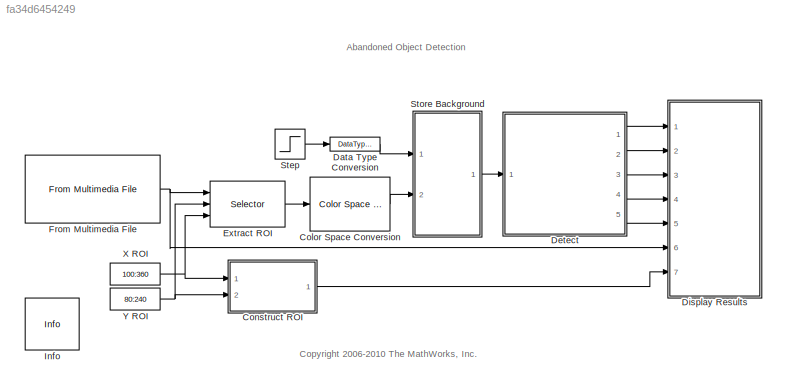
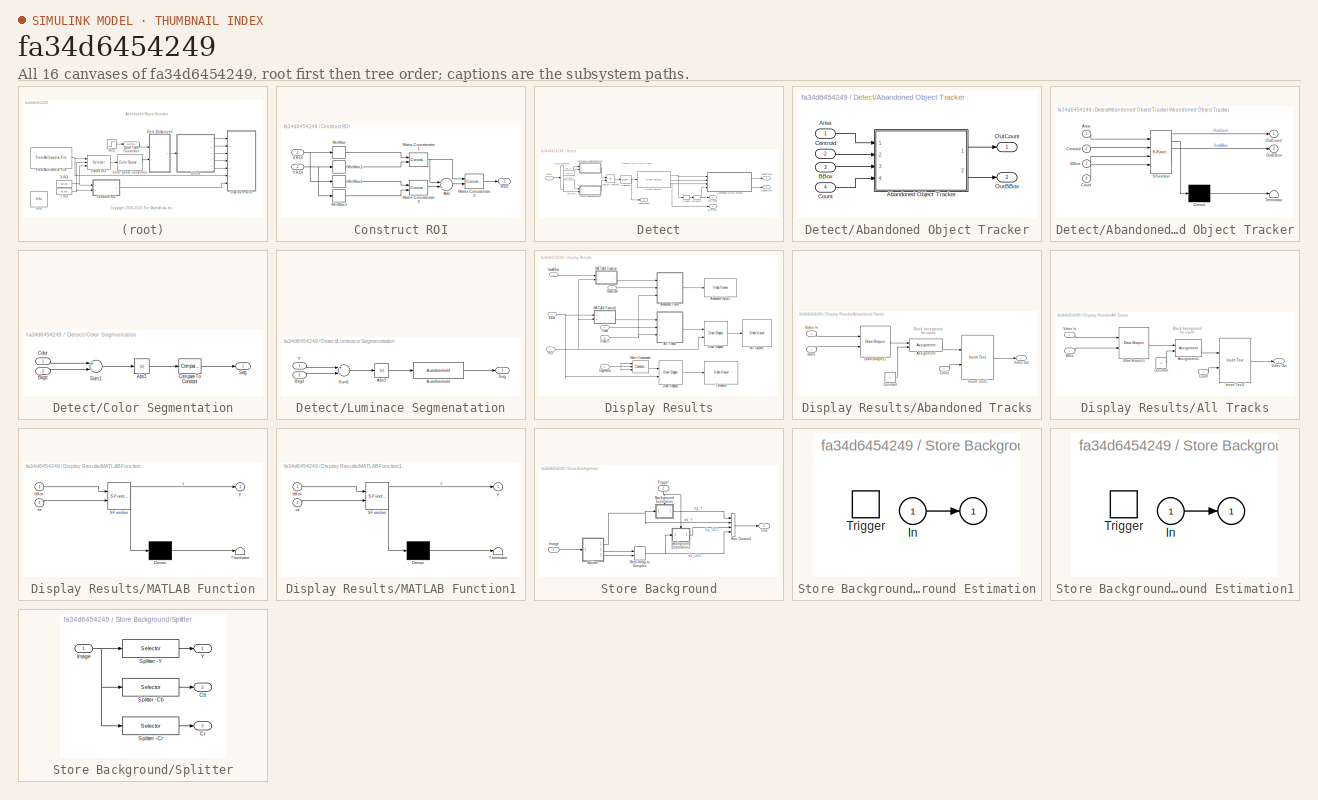
[diagram: thumbnail index - all 16 canvases of the model, root first then tree order]
MODEL slx_fa34d6454249
KIND model
CONFIG AbsTol = auto
CONFIG FixedStep = auto
CONFIG MaxStep = auto
CONFIG MinStep = auto
CONFIG RelTol = 1e-3
CONFIG SampleTimeConstraint = Unconstrained
CONFIG Solver = FixedStepDiscrete
CONFIG SolverMode = Auto
CONFIG SolverName = FixedStepDiscrete
CONFIG StartTime = 0.0
CONFIG StopTime = inf
WORKSPACE source: MATLAB code (in-file)
WORKSPACE maxNumObj = 200
BLOCK [Reference] Color Space Conversion  REF=visionconversions/Color Space
 Conversion
  Ports = [1, 1]
  SourceBlock = visionconversions/Color Space\n Conversion
  SourceType = Color Space Conversion
BLOCK [SubSystem] Construct ROI
  Ports = [2, 1]
  RequestExecContextInheritance = off
  Variant = off
BLOCK [Sum] Construct ROI/Add
  InputSameDT = off
  Inputs = -+
  OutDataTypeStr = Inherit: Inherit via internal rule
  Ports = [2, 1]
  SaturateOnIntegerOverflow = off
BLOCK [Concatenate] Construct ROI/Matrix Concatenate1
  ConcatenateDimension = 2
  Mode = Multidimensional array
  Ports = [2, 1]
BLOCK [Concatenate] Construct ROI/Matrix Concatenate2
  ConcatenateDimension = 2
  Mode = Multidimensional array
  Ports = [2, 1]
BLOCK [Concatenate] Construct ROI/Matrix Concatenate3
  ConcatenateDimension = 2
  Mode = Multidimensional array
  Ports = [2, 1]
BLOCK [MinMax] Construct ROI/MinMax
  InputSameDT = off
  Ports = [1, 1]
  SaturateOnIntegerOverflow = off
BLOCK [MinMax] Construct ROI/MinMax1
  InputSameDT = off
  Ports = [1, 1]
  SaturateOnIntegerOverflow = off
BLOCK [MinMax] Construct ROI/MinMax2
  Function = max
  InputSameDT = off
  Ports = [1, 1]
  SaturateOnIntegerOverflow = off
BLOCK [MinMax] Construct ROI/MinMax3
  Function = max
  InputSameDT = off
  Ports = [1, 1]
  SaturateOnIntegerOverflow = off
BLOCK [Outport] Construct ROI/ROI
  IconDisplay = Port number
BLOCK [Inport] Construct ROI/X ROI 
  IconDisplay = Port number
BLOCK [Inport] Construct ROI/Y ROI
  IconDisplay = Port number
  Port = 2
BLOCK [DataTypeConversion] Data Type Conversion
  OutDataTypeStr = boolean
  RndMeth = Floor
  SaturateOnIntegerOverflow = off
BLOCK [SubSystem] Detect
  Ports = [1, 5]
  RTWMemSecDataConstants = Default
  RTWMemSecDataInternal = Default
  RTWMemSecDataParameters = Default
  RTWMemSecFuncExecute = Default
  RTWMemSecFuncInitTerm = Default
  RequestExecContextInheritance = off
  TreatAsAtomicUnit = on
  Variant = off
BLOCK [SubSystem] Detect/Abandoned Object Tracker
  Ports = [4, 2]
  RequestExecContextInheritance = off
  Variant = off
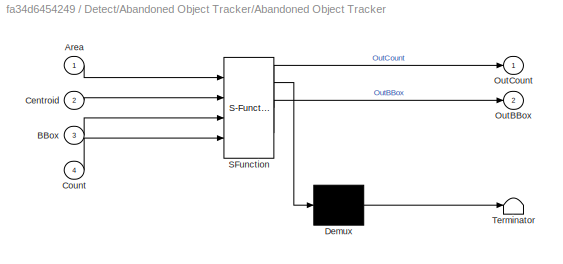
BLOCK [SubSystem] Detect/Abandoned Object Tracker/Abandoned Object Tracker
  ErrorFcn = Stateflow.Translate.translate
  PermitHierarchicalResolution = ExplicitOnly
  Ports = [4, 2]
  RequestExecContextInheritance = off
  SFBlockType = MATLAB Function
  TreatAsAtomicUnit = on
  Variant = off
BLOCK [Demux] Detect/Abandoned Object Tracker/Abandoned Object Tracker/ Demux 
  Outputs = 1
  Ports = [1, 1]
BLOCK [S-Function] Detect/Abandoned Object Tracker/Abandoned Object Tracker/ SFunction 
  EnableBusSupport = off
  FunctionName = sf_sfun
  Parameters = alarmCount,areaChangeFraction,centroidChangeFraction,maxConsecutiveMiss,maxNumObj,minPersistenceRatio
  PortCounts = [4 3]
  Ports = [4, 3]
  SFunctionDeploymentMode = off
  Tag = Stateflow S-Function vipabandonedobj 4
BLOCK [Terminator] Detect/Abandoned Object Tracker/Abandoned Object Tracker/ Terminator 
BLOCK [Inport] Detect/Abandoned Object Tracker/Abandoned Object Tracker/Area
  IconDisplay = Port number
BLOCK [Inport] Detect/Abandoned Object Tracker/Abandoned Object Tracker/BBox
  IconDisplay = Port number
  Port = 3
BLOCK [Inport] Detect/Abandoned Object Tracker/Abandoned Object Tracker/Centroid
  IconDisplay = Port number
  Port = 2
BLOCK [Inport] Detect/Abandoned Object Tracker/Abandoned Object Tracker/Count
  IconDisplay = Port number
  Port = 4
BLOCK [Outport] Detect/Abandoned Object Tracker/Abandoned Object Tracker/OutBBox
  IconDisplay = Port number
  Port = 2
BLOCK [Outport] Detect/Abandoned Object Tracker/Abandoned Object Tracker/OutCount
  IconDisplay = Port number
BLOCK [Inport] Detect/Abandoned Object Tracker/Area
  IconDisplay = Port number
BLOCK [Inport] Detect/Abandoned Object Tracker/BBox
  IconDisplay = Port number
  Port = 3
BLOCK [Inport] Detect/Abandoned Object Tracker/Centroid
  IconDisplay = Port number
  Port = 2
BLOCK [Inport] Detect/Abandoned Object Tracker/Count
  IconDisplay = Port number
  Port = 4
BLOCK [Outport] Detect/Abandoned Object Tracker/OutBBox
  IconDisplay = Port number
  Port = 2
BLOCK [Outport] Detect/Abandoned Object Tracker/OutCount
  IconDisplay = Port number
BLOCK [Reference] Detect/Blob Analysis  REF=visionstatistics/Blob Analysis
  Ports = [1, 3]
  SourceBlock = visionstatistics/Blob Analysis
  SourceType = Blob Analysis
  Tag = vipblks_row_conv
BLOCK [BusSelector] Detect/Bus Selector
  OutputSignals = vid_Y,bg_Y,vid_CbCr,bg_CbCr
  Ports = [1, 4]
BLOCK [SubSystem] Detect/Color Segmentation
  Ports = [2, 1]
  RTWMemSecDataConstants = Default
  RTWMemSecDataInternal = Default
  RTWMemSecDataParameters = Default
  RTWMemSecFuncExecute = Default
  RTWMemSecFuncInitTerm = Default
  RequestExecContextInheritance = off
  Variant = off
BLOCK [Abs] Detect/Color Segmentation/Abs3
BLOCK [Inport] Detect/Color Segmentation/Bkgd
  IconDisplay = Port number
  Port = 2
BLOCK [Inport] Detect/Color Segmentation/Color
  IconDisplay = Port number
BLOCK [Reference] Detect/Color Segmentation/Compare To Constant  REF=simulink/Logic and Bit
Operations/Compare
To Constant
  Ports = [1, 1]
  SourceBlock = simulink/Logic and Bit\nOperations/Compare\nTo Constant
  SourceType = Compare To Constant
BLOCK [Outport] Detect/Color Segmentation/Seg
  IconDisplay = Port number
BLOCK [Sum] Detect/Color Segmentation/Sum1
  Inputs = +-
  Ports = [2, 1]
BLOCK [Inport] Detect/Data
  IconDisplay = Port number
BLOCK [Logic] Detect/Logical Operator
  AllPortsSameDT = off
  Operator = OR
  OutDataTypeStr = boolean
  Ports = [2, 1]
BLOCK [SubSystem] Detect/Luminace Segmenatation
  Ports = [2, 1]
  RTWMemSecDataConstants = Default
  RTWMemSecDataInternal = Default
  RTWMemSecDataParameters = Default
  RTWMemSecFuncExecute = Default
  RTWMemSecFuncInitTerm = Default
  RequestExecContextInheritance = off
  Variant = off
BLOCK [Abs] Detect/Luminace Segmenatation/Abs3
BLOCK [Reference] Detect/Luminace Segmenatation/Autothreshold  REF=visionconversions/Autothreshold
  Ports = [1, 1]
  SourceBlock = visionconversions/Autothreshold
  SourceType = Autothreshold
BLOCK [Inport] Detect/Luminace Segmenatation/Bkgd
  IconDisplay = Port number
  Port = 2
BLOCK [Outport] Detect/Luminace Segmenatation/Seg
  IconDisplay = Port number
BLOCK [Sum] Detect/Luminace Segmenatation/Sum1
  Inputs = +-
  Ports = [2, 1]
BLOCK [Inport] Detect/Luminace Segmenatation/Y'
  IconDisplay = Port number
BLOCK [Reference] Detect/Opening  REF=visionmorphops/Opening
  Ports = [1, 1]
  SourceBlock = visionmorphops/Opening
  SourceType = Opening
BLOCK [Probe] Detect/Probe1
  Ports = [1, 1]
  ProbeComplexSignal = off
  ProbeDimensionsDataType = int32
  ProbeSampleTime = off
  ProbeSignalDimensions = on
  ProbeWidth = off
BLOCK [Outport] Detect/Segmented
  IconDisplay = Port number
  Port = 5
BLOCK [Selector] Detect/Selector1
  IndexOptions = Index vector (dialog)
  Indices = 1
  InputPortWidth = 2
  OutputSizes = 1
  Ports = [1, 1]
BLOCK [Outport] Detect/allBBox
  IconDisplay = Port number
  Port = 3
BLOCK [Outport] Detect/allCount
  IconDisplay = Port number
  Port = 4
BLOCK [Outport] Detect/foundBBox
  IconDisplay = Port number
BLOCK [Outport] Detect/foundCount
  IconDisplay = Port number
  Port = 2
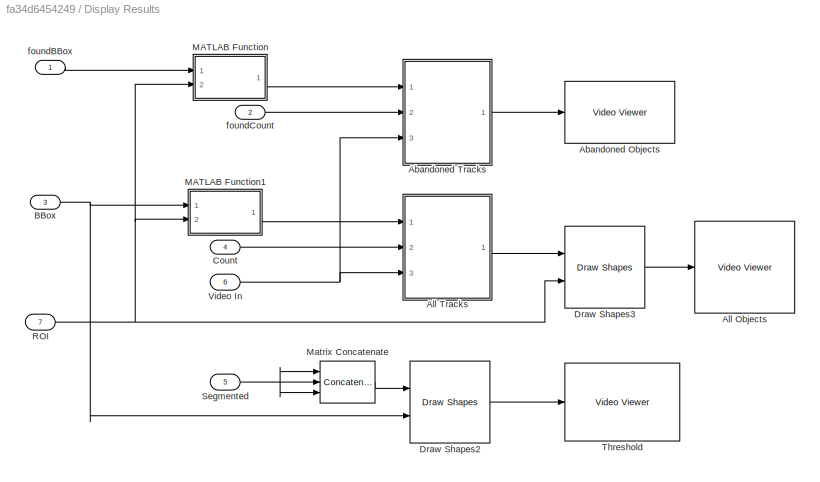
BLOCK [SubSystem] Display Results
  Ports = [7]
  RTWMemSecDataConstants = Default
  RTWMemSecDataInternal = Default
  RTWMemSecDataParameters = Default
  RTWMemSecFuncExecute = Default
  RTWMemSecFuncInitTerm = Default
  RequestExecContextInheritance = off
  Variant = off
BLOCK [Reference] Display Results/Abandoned Objects  REF=visionsinks/Video Viewer
  Ports = [1]
  SourceBlock = visionsinks/Video Viewer
  SourceType = Video Viewer
  UserDataPersistent = on
BLOCK [SubSystem] Display Results/Abandoned Tracks
  Ports = [3, 1]
  RTWMemSecDataConstants = Default
  RTWMemSecDataInternal = Default
  RTWMemSecDataParameters = Default
  RTWMemSecFuncExecute = Default
  RTWMemSecFuncInitTerm = Default
  RequestExecContextInheritance = off
  Variant = off
BLOCK [Assignment] Display Results/Abandoned Tracks/Assignment
  IndexOptions = Index vector (dialog),Index vector (dialog),Assign all
  Indices = [1:15],[1:30],[]
  NumberOfDimensions = 3
  OutputSizes = 1, 1
  Ports = [2, 1]
BLOCK [Inport] Display Results/Abandoned Tracks/BBox
  IconDisplay = Port number
BLOCK [Constant] Display Results/Abandoned Tracks/Constant
  OutDataTypeStr = Inherit: Inherit via back propagation
  Value = 0
  VectorParams1D = off
BLOCK [Inport] Display Results/Abandoned Tracks/Count
  IconDisplay = Port number
  Port = 2
BLOCK [Reference] Display Results/Abandoned Tracks/Draw Shapes1  REF=visiontextngfix/Draw Shapes
  Ports = [2, 1]
  SourceBlock = visiontextngfix/Draw Shapes
  SourceType = Draw Shapes
BLOCK [Reference] Display Results/Abandoned Tracks/Insert Text1  REF=visiontextngfix/Insert Text
  Ports = [2, 1]
  SourceBlock = visiontextngfix/Insert Text
  SourceType = Insert Text
BLOCK [Inport] Display Results/Abandoned Tracks/Video In
  IconDisplay = Port number
  Port = 3
BLOCK [Outport] Display Results/Abandoned Tracks/Video Out
  IconDisplay = Port number
BLOCK [Reference] Display Results/All Objects  REF=visionsinks/Video Viewer
  Ports = [1]
  SourceBlock = visionsinks/Video Viewer
  SourceType = Video Viewer
  UserDataPersistent = on
BLOCK [SubSystem] Display Results/All Tracks
  Ports = [3, 1]
  RTWMemSecDataConstants = Default
  RTWMemSecDataInternal = Default
  RTWMemSecDataParameters = Default
  RTWMemSecFuncExecute = Default
  RTWMemSecFuncInitTerm = Default
  RequestExecContextInheritance = off
  Variant = off
BLOCK [Assignment] Display Results/All Tracks/Assignment1
  IndexOptions = Index vector (dialog),Index vector (dialog),Assign all
  Indices = [1:15],[1:30],[]
  NumberOfDimensions = 3
  OutputSizes = 1, 1
  Ports = [2, 1]
BLOCK [Inport] Display Results/All Tracks/BBox
  IconDisplay = Port number
BLOCK [Constant] Display Results/All Tracks/Constant
  OutDataTypeStr = Inherit: Inherit via back propagation
  Value = 0
  VectorParams1D = off
BLOCK [Inport] Display Results/All Tracks/Count
  IconDisplay = Port number
  Port = 2
BLOCK [Reference] Display Results/All Tracks/Draw Shapes1  REF=visiontextngfix/Draw Shapes
  Ports = [2, 1]
  SourceBlock = visiontextngfix/Draw Shapes
  SourceType = Draw Shapes
BLOCK [Reference] Display Results/All Tracks/Insert Text1  REF=visiontextngfix/Insert Text
  Ports = [2, 1]
  SourceBlock = visiontextngfix/Insert Text
  SourceType = Insert Text
BLOCK [Inport] Display Results/All Tracks/Video In
  IconDisplay = Port number
  Port = 3
BLOCK [Outport] Display Results/All Tracks/Video Out
  IconDisplay = Port number
BLOCK [Inport] Display Results/BBox
  IconDisplay = Port number
  Port = 3
BLOCK [Inport] Display Results/Count
  IconDisplay = Port number
  Port = 4
BLOCK [Reference] Display Results/Draw Shapes2  REF=visiontextngfix/Draw Shapes
  Ports = [2, 1]
  SourceBlock = visiontextngfix/Draw Shapes
  SourceType = Draw Shapes
BLOCK [Reference] Display Results/Draw Shapes3  REF=visiontextngfix/Draw Shapes
  Ports = [2, 1]
  SourceBlock = visiontextngfix/Draw Shapes
  SourceType = Draw Shapes
BLOCK [SubSystem] Display Results/MATLAB Function
  ErrorFcn = Stateflow.Translate.translate
  PermitHierarchicalResolution = ExplicitOnly
  Ports = [2, 1]
  RequestExecContextInheritance = off
  SFBlockType = MATLAB Function
  TreatAsAtomicUnit = on
  Variant = off
BLOCK [Demux] Display Results/MATLAB Function/ Demux 
  Outputs = 1
  Ports = [1, 1]
BLOCK [S-Function] Display Results/MATLAB Function/ SFunction 
  EnableBusSupport = off
  FunctionName = sf_sfun
  PortCounts = [2 2]
  Ports = [2, 2]
  SFunctionDeploymentMode = off
  Tag = Stateflow S-Function vipabandonedobj 5
BLOCK [Terminator] Display Results/MATLAB Function/ Terminator 
BLOCK [Inport] Display Results/MATLAB Function/bBox
  IconDisplay = Port number
BLOCK [Inport] Display Results/MATLAB Function/roi
  IconDisplay = Port number
  Port = 2
BLOCK [Outport] Display Results/MATLAB Function/y
  IconDisplay = Port number
BLOCK [SubSystem] Display Results/MATLAB Function1
  ErrorFcn = Stateflow.Translate.translate
  PermitHierarchicalResolution = ExplicitOnly
  Ports = [2, 1]
  RequestExecContextInheritance = off
  SFBlockType = MATLAB Function
  TreatAsAtomicUnit = on
  Variant = off
BLOCK [Demux] Display Results/MATLAB Function1/ Demux 
  Outputs = 1
  Ports = [1, 1]
BLOCK [S-Function] Display Results/MATLAB Function1/ SFunction 
  EnableBusSupport = off
  FunctionName = sf_sfun
  PortCounts = [2 2]
  Ports = [2, 2]
  SFunctionDeploymentMode = off
  Tag = Stateflow S-Function vipabandonedobj 6
BLOCK [Terminator] Display Results/MATLAB Function1/ Terminator 
BLOCK [Inport] Display Results/MATLAB Function1/bBox
  IconDisplay = Port number
BLOCK [Inport] Display Results/MATLAB Function1/roi
  IconDisplay = Port number
  Port = 2
BLOCK [Outport] Display Results/MATLAB Function1/y
  IconDisplay = Port number
BLOCK [Concatenate] Display Results/Matrix Concatenate
  ConcatenateDimension = 3
  Mode = Multidimensional array
  NumInputs = 3
  Ports = [3, 1]
BLOCK [Inport] Display Results/ROI
  IconDisplay = Port number
  Port = 7
BLOCK [Inport] Display Results/Segmented
  IconDisplay = Port number
  Port = 5
BLOCK [Reference] Display Results/Threshold  REF=visionsinks/Video Viewer
  Ports = [1]
  SourceBlock = visionsinks/Video Viewer
  SourceType = Video Viewer
  UserDataPersistent = on
BLOCK [Inport] Display Results/Video In
  IconDisplay = Port number
  Port = 6
BLOCK [Inport] Display Results/foundBBox
  IconDisplay = Port number
BLOCK [Inport] Display Results/foundCount
  IconDisplay = Port number
  Port = 2
BLOCK [Selector] Extract ROI
  IndexOptions = Index vector (port),Index vector (port),Select all
  Indices = [roi(1):roi(3)],[roi(2):roi(4)],[]
  NumberOfDimensions = 3
  OutputSizes = 1
  Ports = [3, 1]
BLOCK [Reference] From Multimedia File  REF=dspvision/From Multimedia File
  Ports = [0, 1]
  SourceBlock = dspvision/From Multimedia File
  SourceType = From Multimedia File
BLOCK [Reference] Info  REF=vipmisc/Info
  Ports = []
  SourceBlock = vipmisc/Info
  SourceType = Info
BLOCK [Step] Step
  Time = eps
BLOCK [SubSystem] Store Background
  Ports = [2, 1]
  RequestExecContextInheritance = off
  Variant = off
BLOCK [SubSystem] Store Background/Background Estimation
  Ports = [1, 1, 0, 1]
  RequestExecContextInheritance = off
  TreatAsAtomicUnit = on
  Variant = off
BLOCK [Outport] Store Background/Background Estimation/ 
  IconDisplay = Port number
  InitialOutput = initCond
BLOCK [Inport] Store Background/Background Estimation/In
  IconDisplay = Port number
BLOCK [TriggerPort] Store Background/Background Estimation/Trigger
  Ports = []
  ZeroCross = off
BLOCK [SubSystem] Store Background/Background Estimation1
  Ports = [1, 1, 0, 1]
  RequestExecContextInheritance = off
  TreatAsAtomicUnit = on
  Variant = off
BLOCK [Outport] Store Background/Background Estimation1/ 
  IconDisplay = Port number
  InitialOutput = initCond
BLOCK [Inport] Store Background/Background Estimation1/In
  IconDisplay = Port number
BLOCK [TriggerPort] Store Background/Background Estimation1/Trigger
  Ports = []
  ZeroCross = off
BLOCK [BusCreator] Store Background/Bus Creator1
  DisplayOption = bar
  InheritFromInputs = on
  Inputs = 4
  Ports = [4, 1]
BLOCK [Inport] Store Background/Image
  IconDisplay = Port number
  Port = 2
BLOCK [Outport] Store Background/Out
  IconDisplay = Port number
BLOCK [RealImagToComplex] Store Background/Real-Imag to Complex
  Ports = [2, 1]
BLOCK [SubSystem] Store Background/Splitter
  Ports = [1, 3]
  RequestExecContextInheritance = off
  Variant = off
BLOCK [Outport] Store Background/Splitter/Cb
  IconDisplay = Port number
  Port = 2
BLOCK [Outport] Store Background/Splitter/Cr
  IconDisplay = Port number
  Port = 3
BLOCK [Inport] Store Background/Splitter/Image
  IconDisplay = Port number
BLOCK [Selector] Store Background/Splitter/Splitter -Cb
  IndexOptions = Select all,Select all,Index vector (dialog)
  Indices = [],[],[2]
  NumberOfDimensions = 3
  OutputSizes = 1
  Ports = [1, 1]
BLOCK [Selector] Store Background/Splitter/Splitter -Cr
  IndexOptions = Select all,Select all,Index vector (dialog)
  Indices = [],[],[3]
  NumberOfDimensions = 3
  OutputSizes = 1
  Ports = [1, 1]
BLOCK [Selector] Store Background/Splitter/Splitter -Y
  IndexOptions = Select all,Select all,Index vector (dialog)
  Indices = [],[],[1]
  NumberOfDimensions = 3
  OutputSizes = 1
  Ports = [1, 1]
BLOCK [Outport] Store Background/Splitter/Y
  IconDisplay = Port number
BLOCK [Inport] Store Background/Trigger
  IconDisplay = Port number
BLOCK [Constant] X ROI
  Value = 100:360
BLOCK [Constant] Y ROI
  Value = 80:240
ANNOTATION (root): Abandoned Object Detection
ANNOTATION (root): <copyright redacted>
ANNOTATION Detect: Changed from Close to Open
ANNOTATION Display Results/Abandoned Tracks: Black background for count
ANNOTATION Display Results/All Tracks: Black background for count
LINE Color Space Conversion:1 -> Store Background:2
LINE Construct ROI/Add:1 -> Construct ROI/Matrix Concatenate2:2
NET Construct ROI/Matrix Concatenate1:1 -> Construct ROI/Add:1, Construct ROI/Matrix Concatenate2:1
LINE Construct ROI/Matrix Concatenate2:1 -> Construct ROI/ROI:1
LINE Construct ROI/Matrix Concatenate3:1 -> Construct ROI/Add:2
LINE Construct ROI/MinMax1:1 -> Construct ROI/Matrix Concatenate1:2
LINE Construct ROI/MinMax2:1 -> Construct ROI/Matrix Concatenate3:1
LINE Construct ROI/MinMax3:1 -> Construct ROI/Matrix Concatenate3:2
LINE Construct ROI/MinMax:1 -> Construct ROI/Matrix Concatenate1:1
NET Construct ROI/X ROI :1 -> Construct ROI/MinMax2:1, Construct ROI/MinMax:1
NET Construct ROI/Y ROI:1 -> Construct ROI/MinMax1:1, Construct ROI/MinMax3:1
LINE Construct ROI:1 -> Display Results:7
LINE Data Type Conversion:1 -> Store Background:1
LINE Detect/Abandoned Object Tracker/Abandoned Object Tracker:1 -> Detect/Abandoned Object Tracker/OutCount:1
LINE Detect/Abandoned Object Tracker/Abandoned Object Tracker:2 -> Detect/Abandoned Object Tracker/OutBBox:1
LINE Detect/Abandoned Object Tracker/Area:1 -> Detect/Abandoned Object Tracker/Abandoned Object Tracker:1
LINE Detect/Abandoned Object Tracker/BBox:1 -> Detect/Abandoned Object Tracker/Abandoned Object Tracker:3
LINE Detect/Abandoned Object Tracker/Centroid:1 -> Detect/Abandoned Object Tracker/Abandoned Object Tracker:2
LINE Detect/Abandoned Object Tracker/Count:1 -> Detect/Abandoned Object Tracker/Abandoned Object Tracker:4
LINE Detect/Abandoned Object Tracker:1 -> Detect/foundCount:1
LINE Detect/Abandoned Object Tracker:2 -> Detect/foundBBox:1
NET Detect/Blob Analysis:1 -> Detect/Abandoned Object Tracker:1, Detect/Probe1:1
LINE Detect/Blob Analysis:2 -> Detect/Abandoned Object Tracker:2
NET Detect/Blob Analysis:3 -> Detect/Abandoned Object Tracker:3, Detect/allBBox:1
LINE Detect/Bus Selector:1 -> Detect/Luminace Segmenatation:1
LINE Detect/Bus Selector:2 -> Detect/Luminace Segmenatation:2
LINE Detect/Bus Selector:3 -> Detect/Color Segmentation:1
LINE Detect/Bus Selector:4 -> Detect/Color Segmentation:2
LINE Detect/Color Segmentation/Abs3:1 -> Detect/Color Segmentation/Compare To Constant:1
LINE Detect/Color Segmentation/Bkgd:1 -> Detect/Color Segmentation/Sum1:2
LINE Detect/Color Segmentation/Color:1 -> Detect/Color Segmentation/Sum1:1
LINE Detect/Color Segmentation/Compare To Constant:1 -> Detect/Color Segmentation/Seg:1
LINE Detect/Color Segmentation/Sum1:1 -> Detect/Color Segmentation/Abs3:1
LINE Detect/Color Segmentation:1 -> Detect/Logical Operator:2
LINE Detect/Data:1 -> Detect/Bus Selector:1
LINE Detect/Logical Operator:1 -> Detect/Opening:1
LINE Detect/Luminace Segmenatation/Abs3:1 -> Detect/Luminace Segmenatation/Autothreshold:1
LINE Detect/Luminace Segmenatation/Autothreshold:1 -> Detect/Luminace Segmenatation/Seg:1
LINE Detect/Luminace Segmenatation/Bkgd:1 -> Detect/Luminace Segmenatation/Sum1:2
LINE Detect/Luminace Segmenatation/Sum1:1 -> Detect/Luminace Segmenatation/Abs3:1
LINE Detect/Luminace Segmenatation/Y':1 -> Detect/Luminace Segmenatation/Sum1:1
LINE Detect/Luminace Segmenatation:1 -> Detect/Logical Operator:1
NET Detect/Opening:1 -> Detect/Blob Analysis:1, Detect/Segmented:1
LINE Detect/Probe1:1 -> Detect/Selector1:1
NET Detect/Selector1:1 -> Detect/Abandoned Object Tracker:4, Detect/allCount:1
LINE Detect:1 -> Display Results:1
LINE Detect:2 -> Display Results:2
LINE Detect:3 -> Display Results:3
LINE Detect:4 -> Display Results:4
LINE Detect:5 -> Display Results:5
LINE Display Results/Abandoned Tracks/Assignment:1 -> Display Results/Abandoned Tracks/Insert Text1:1
LINE Display Results/Abandoned Tracks/BBox:1 -> Display Results/Abandoned Tracks/Draw Shapes1:2
LINE Display Results/Abandoned Tracks/Constant:1 -> Display Results/Abandoned Tracks/Assignment:2
LINE Display Results/Abandoned Tracks/Count:1 -> Display Results/Abandoned Tracks/Insert Text1:2
LINE Display Results/Abandoned Tracks/Draw Shapes1:1 -> Display Results/Abandoned Tracks/Assignment:1
LINE Display Results/Abandoned Tracks/Insert Text1:1 -> Display Results/Abandoned Tracks/Video Out:1
LINE Display Results/Abandoned Tracks/Video In:1 -> Display Results/Abandoned Tracks/Draw Shapes1:1
LINE Display Results/Abandoned Tracks:1 -> Display Results/Abandoned Objects:1
LINE Display Results/All Tracks/Assignment1:1 -> Display Results/All Tracks/Insert Text1:1
LINE Display Results/All Tracks/BBox:1 -> Display Results/All Tracks/Draw Shapes1:2
LINE Display Results/All Tracks/Constant:1 -> Display Results/All Tracks/Assignment1:2
LINE Display Results/All Tracks/Count:1 -> Display Results/All Tracks/Insert Text1:2
LINE Display Results/All Tracks/Draw Shapes1:1 -> Display Results/All Tracks/Assignment1:1
LINE Display Results/All Tracks/Insert Text1:1 -> Display Results/All Tracks/Video Out:1
LINE Display Results/All Tracks/Video In:1 -> Display Results/All Tracks/Draw Shapes1:1
LINE Display Results/All Tracks:1 -> Display Results/Draw Shapes3:1
NET Display Results/BBox:1 -> Display Results/Draw Shapes2:2, Display Results/MATLAB Function1:1
LINE Display Results/Count:1 -> Display Results/All Tracks:2
LINE Display Results/Draw Shapes2:1 -> Display Results/Threshold:1
LINE Display Results/Draw Shapes3:1 -> Display Results/All Objects:1
LINE Display Results/MATLAB Function1:1 -> Display Results/All Tracks:1
LINE Display Results/MATLAB Function:1 -> Display Results/Abandoned Tracks:1
LINE Display Results/Matrix Concatenate:1 -> Display Results/Draw Shapes2:1
NET Display Results/ROI:1 -> Display Results/Draw Shapes3:2, Display Results/MATLAB Function1:2, Display Results/MATLAB Function:2
NET Display Results/Segmented:1 -> Display Results/Matrix Concatenate:1, Display Results/Matrix Concatenate:2, Display Results/Matrix Concatenate:3
NET Display Results/Video In:1 -> Display Results/Abandoned Tracks:3, Display Results/All Tracks:3
LINE Display Results/foundBBox:1 -> Display Results/MATLAB Function:1
LINE Display Results/foundCount:1 -> Display Results/Abandoned Tracks:2
LINE Extract ROI:1 -> Color Space Conversion:1
NET From Multimedia File:1 -> Display Results:6, Extract ROI:1
LINE Step:1 -> Data Type Conversion:1
LINE Store Background/Background Estimation/In:1 -> Store Background/Background Estimation/ :1
LINE Store Background/Background Estimation1/In:1 -> Store Background/Background Estimation1/ :1
LINE Store Background/Background Estimation1:1 -> Store Background/Bus Creator1:3
LINE Store Background/Background Estimation:1 -> Store Background/Bus Creator1:1
LINE Store Background/Bus Creator1:1 -> Store Background/Out:1
LINE Store Background/Image:1 -> Store Background/Splitter:1
NET Store Background/Real-Imag to Complex:1 -> Store Background/Background Estimation1:1, Store Background/Bus Creator1:4
NET Store Background/Splitter/Image:1 -> Store Background/Splitter/Splitter -Cb:1, Store Background/Splitter/Splitter -Cr:1, Store Background/Splitter/Splitter -Y:1
LINE Store Background/Splitter/Splitter -Cb:1 -> Store Background/Splitter/Cb:1
LINE Store Background/Splitter/Splitter -Cr:1 -> Store Background/Splitter/Cr:1
LINE Store Background/Splitter/Splitter -Y:1 -> Store Background/Splitter/Y:1
NET Store Background/Splitter:1 -> Store Background/Background Estimation:1, Store Background/Bus Creator1:2
LINE Store Background/Splitter:2 -> Store Background/Real-Imag to Complex:1
LINE Store Background/Splitter:3 -> Store Background/Real-Imag to Complex:2
NET Store Background/Trigger:1 -> Store Background/Background Estimation1:trigger, Store Background/Background Estimation:trigger
LINE Store Background:1 -> Detect:1
NET X ROI:1 -> Construct ROI:1, Extract ROI:3
NET Y ROI:1 -> Construct ROI:2, Extract ROI:2
note: NET lines group one-source signal fan-out (src -> all destinations, sorted); 1:1 wires keep LINE
CHART Detect/Abandoned Object
Tracker/Abandoned Object
Tracker states=1 transitions=1
  STATE_LABEL 'eML_blk_kernel()'
  STATE_LABEL 'SCRIPT:\n%% This block implements an abandoned object tracker.\n%%\n%% Note:  Inputs that start with capital letter are represented as ports\n%%        while inputs that start with lower case are mask parameters\n%%\n\nfunction [OutCount, OutBBox] = ObjTracker(Area, Centroid, BBox, Count, ...\n    areaChangeFraction, centroidChangeFraction, maxConsecutiveMiss, ...\n    minPersistenceRatio, alarmCount, maxN...<+3608ch>'
CHART Display Results/MATLAB Function states=1 transitions=1
  STATE_LABEL 'eML_blk_kernel()'
  STATE_LABEL 'SCRIPT:\nfunction y = vAdd(bBox, roi)\n%#codegen\n% Add roi offset to the bounding boxes for display in the input image\ny = bBox;\nif (size(bBox,1)~=0)\n    y(:,1) = bBox(:,1) + roi(1)-1;\n    y(:,2) = bBox(:,2) + roi(2)-1;\nend'
CHART Display Results/MATLAB Function1 states=1 transitions=1
  STATE_LABEL 'eML_blk_kernel()'
  STATE_LABEL 'SCRIPT:\nfunction y = vAdd(bBox, roi)\n%#codegen\n% Add roi offset to the bounding boxes for display in the input image\ny = bBox;\nif (size(bBox,1)~=0)\n    y(:,1) = bBox(:,1) + roi(1)-1;\n    y(:,2) = bBox(:,2) + roi(2)-1;\nend'
